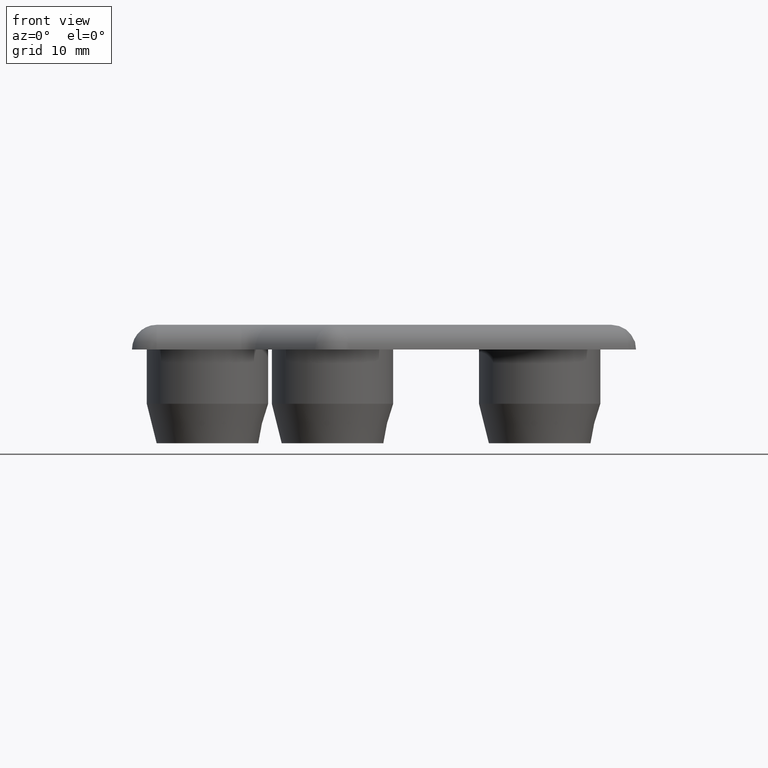
[diagram: clean part render]
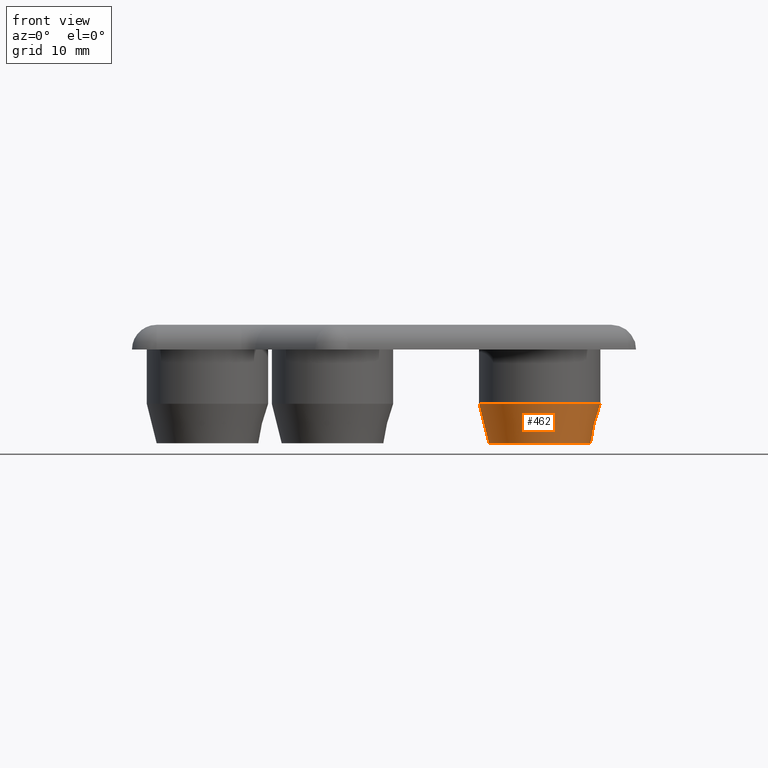
[diagram: same view with one face highlighted and labeled with its STEP entity id]
A machine part, front view. The second image highlights one B-rep face of the part: STEP entity #462.
In plain terms, the highlighted conical surface has half-angle 14.036 deg.
Its self-contained STEP definition (entity closure, byte-faithful):
#62=FACE_OUTER_BOUND('',#99,.T.);
#99=EDGE_LOOP('',(#351,#352,#353,#354));
#135=LINE('',#799,#159);
#159=VECTOR('',#635,5.65);
#189=CIRCLE('',#529,6.15);
#190=CIRCLE('',#530,5.15);
#229=VERTEX_POINT('',#796);
#230=VERTEX_POINT('',#798);
#275=EDGE_CURVE('',#229,#229,#189,.T.);
#276=EDGE_CURVE('',#229,#230,#135,.T.);
#277=EDGE_CURVE('',#230,#230,#190,.T.);
#351=ORIENTED_EDGE('',*,*,#275,.T.);
#352=ORIENTED_EDGE('',*,*,#276,.T.);
#353=ORIENTED_EDGE('',*,*,#277,.T.);
#354=ORIENTED_EDGE('',*,*,#276,.F.);
#452=CONICAL_SURFACE('',#528,5.65,0.244978663126864);
#462=ADVANCED_FACE('',(#62),#452,.T.);
#528=AXIS2_PLACEMENT_3D('',#795,#631,#632);
#529=AXIS2_PLACEMENT_3D('',#797,#633,#634);
#530=AXIS2_PLACEMENT_3D('',#800,#636,#637);
#631=DIRECTION('center_axis',(0.,0.,1.));
#632=DIRECTION('ref_axis',(1.,0.,0.));
#633=DIRECTION('center_axis',(0.,0.,-1.));
#634=DIRECTION('ref_axis',(1.,0.,0.));
#635=DIRECTION('',(0.242535625036333,2.97020476879948E-17,-0.970142500145332));
#636=DIRECTION('center_axis',(0.,0.,1.));
#637=DIRECTION('ref_axis',(1.,0.,0.));
#795=CARTESIAN_POINT('Origin',(20.9718527902861,3.00487995849924,-7.5));
#796=CARTESIAN_POINT('',(14.8218527902861,3.00487995849924,-5.5));
#797=CARTESIAN_POINT('Origin',(20.9718527902861,3.00487995849924,-5.5));
#798=CARTESIAN_POINT('',(15.8218527902861,3.00487995849924,-9.5));
#799=CARTESIAN_POINT('',(15.3218527902861,3.00487995849924,-7.5));
#800=CARTESIAN_POINT('Origin',(20.9718527902861,3.00487995849924,-9.5));